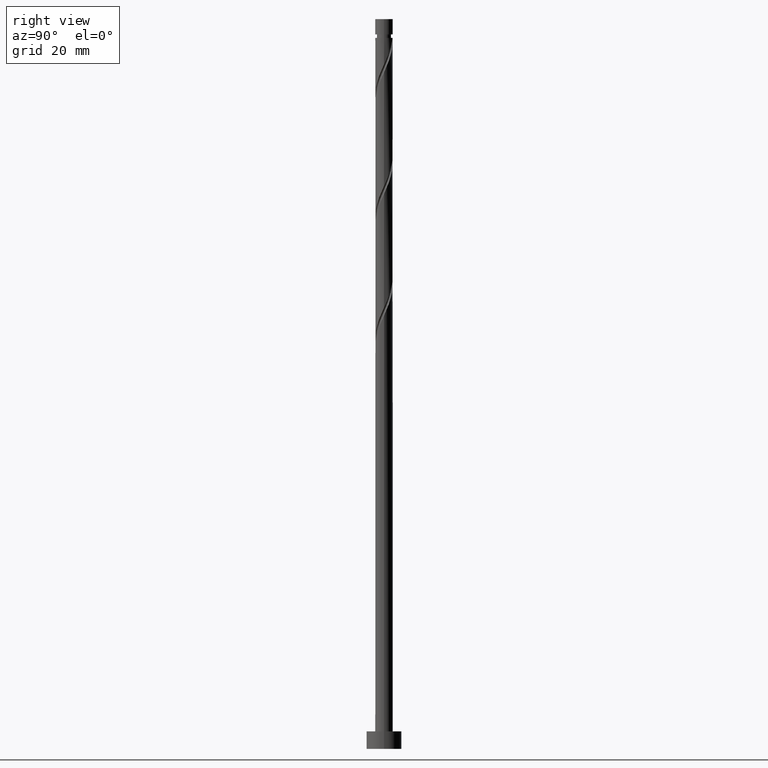
[diagram: clean part render]
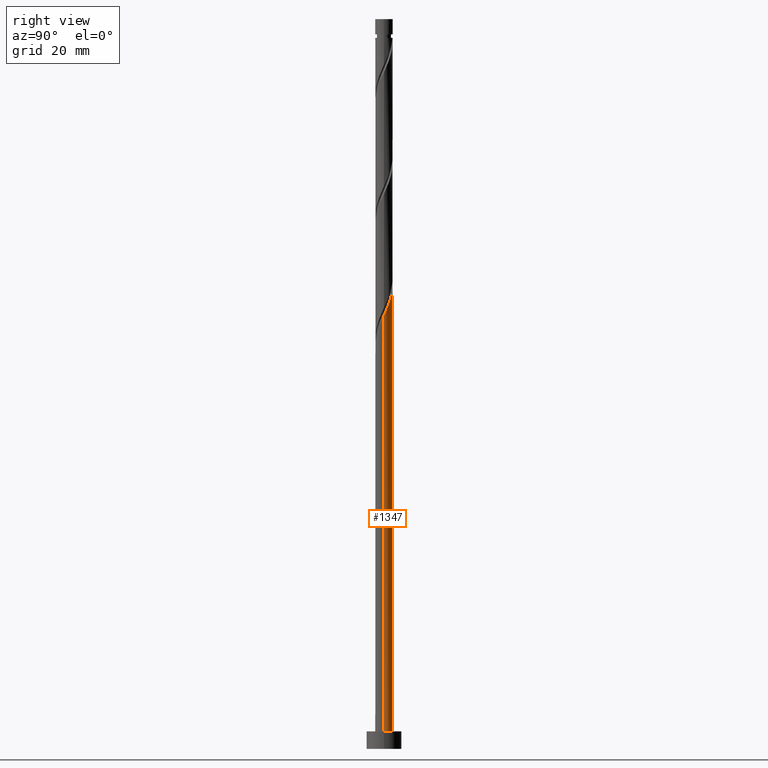
[diagram: same view with one face highlighted and labeled with its STEP entity id]
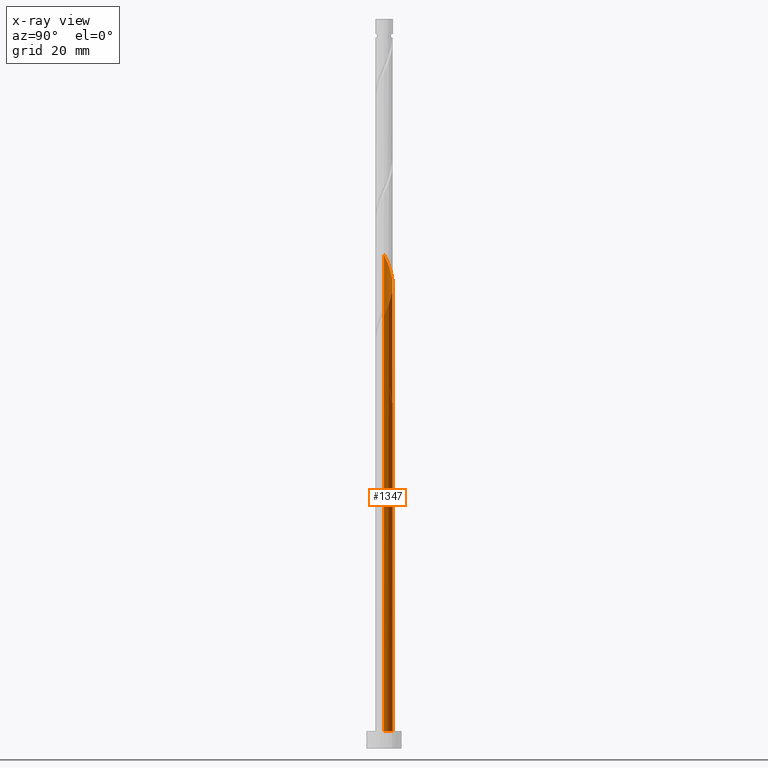
[diagram: x-ray of the same camera — body ghosted, the highlighted face saturated]
A machine part, right view. The second image highlights one B-rep face of the part: STEP entity #1347.
The next image is the same camera in x-ray: the body ghosted, the highlighted face saturated — about 0% of this face is hidden behind the body in this view.
In plain terms, the highlighted cylindrical surface (edge-blend (fillet) strip) has radius 1.5 mm, axis along (-0, -0, -1).
Its self-contained STEP definition (entity closure, byte-faithful):
#2 = CARTESIAN_POINT ( 'NONE',  ( -1.500000000000000666, 0.1507556722888808154, 64.82116267053270064 ) ) ;
#15 = VERTEX_POINT ( 'NONE', #197 ) ;
#65 = CARTESIAN_POINT ( 'NONE',  ( -1.266103512756640459, 0.8387040983525508864, 61.88649813780359921 ) ) ;
#69 = VECTOR ( 'NONE', #1432, 1000.000000000000000 ) ;
#71 = CARTESIAN_POINT ( 'NONE',  ( -1.490293487130534444, 0.1703681960235536030, 63.44899813780359210 ) ) ;
#99 = CARTESIAN_POINT ( 'NONE',  ( 0.000000000000000000, 0.000000000000000000, 3.000000000000000000 ) ) ;
#108 = CARTESIAN_POINT ( 'NONE',  ( 1.500000000000002442, 0.1507556722888809542, 74.57683360507451198 ) ) ;
#109 = EDGE_CURVE ( 'NONE', #855, #15, #1321, .T. ) ;
#119 = DIRECTION ( 'NONE',  ( 1.000000000000000000, 0.000000000000000000, 0.000000000000000000 ) ) ;
#122 = CARTESIAN_POINT ( 'NONE',  ( -0.9449621764685317560, 1.188902500061264966, 81.67816480447028482 ) ) ;
#129 = CARTESIAN_POINT ( 'NONE',  ( -1.305812670777219964, 0.7381417674387925620, 63.44899813780359210 ) ) ;
#143 = ORIENTED_EDGE ( 'NONE', *, *, #685, .F. ) ;
#145 = CARTESIAN_POINT ( 'NONE',  ( -1.470000000000000417, 0.2984962311319862560, 64.49066480447028482 ) ) ;
#162 = EDGE_CURVE ( 'NONE', #423, #15, #1092, .T. ) ;
#176 = VERTEX_POINT ( 'NONE', #1296 ) ;
#181 = CIRCLE ( 'NONE', #1075, 1.500000000000000222 ) ;
#197 = CARTESIAN_POINT ( 'NONE',  ( -1.500000000000000222, 0.000000000000000000, 3.000000000000000000 ) ) ;
#207 = LINE ( 'NONE', #487, #1478 ) ;
#216 = CARTESIAN_POINT ( 'NONE',  ( -1.364706664255442181, 0.6225557971272877023, 83.24066480447027061 ) ) ;
#223 = CARTESIAN_POINT ( 'NONE',  ( 1.500000000000002665, 1.266917185180876536E-15, 74.24252902966667023 ) ) ;
#227 = CARTESIAN_POINT ( 'NONE',  ( -0.06567110385491728430, 1.517277158506825430, 79.59483147113695622 ) ) ;
#243 = CARTESIAN_POINT ( 'NONE',  ( -1.105532844612586274, 1.013803299206907704, 82.19899813780358500 ) ) ;
#260 = ORIENTED_EDGE ( 'NONE', *, *, #1231, .T. ) ;
#267 = AXIS2_PLACEMENT_3D ( 'NONE', #99, #818, #119 ) ;
#279 = CARTESIAN_POINT ( 'NONE',  ( -1.364706664255442181, 0.6225557971272877023, 62.40733147113693491 ) ) ;
#281 = LINE ( 'NONE', #757, #327 ) ;
#298 = CARTESIAN_POINT ( 'NONE',  ( 0.4064074959020249622, 1.463309815754242571, 78.55316480447024219 ) ) ;
#314 = CARTESIAN_POINT ( 'NONE',  ( 1.188902500061265188, 0.9449621764685315339, 76.46983147113692780 ) ) ;
#327 = VECTOR ( 'NONE', #750, 1000.000000000000000 ) ;
#347 = CARTESIAN_POINT ( 'NONE',  ( -0.7381417674387935612, 1.305812670777222406, 81.15733147113694201 ) ) ;
#355 = AXIS2_PLACEMENT_3D ( 'NONE', #697, #397, #391 ) ;
#360 = CARTESIAN_POINT ( 'NONE',  ( -0.8387040983525493321, 1.266103512756638683, 61.88649813780360631 ) ) ;
#369 = CARTESIAN_POINT ( 'NONE',  ( -1.422722841493176960, 0.5313213584090547004, 63.96983147113694201 ) ) ;
#391 = DIRECTION ( 'NONE',  ( -1.000000000000000000, 0.000000000000000000, 0.000000000000000000 ) ) ;
#397 = DIRECTION ( 'NONE',  ( -0.000000000000000000, -0.000000000000000000, -1.000000000000000000 ) ) ;
#423 = VERTEX_POINT ( 'NONE', #896 ) ;
#468 = CARTESIAN_POINT ( 'NONE',  ( -1.266103512756640459, 0.8387040983525508864, 82.71983147113694201 ) ) ;
#487 = CARTESIAN_POINT ( 'NONE',  ( -1.500000000000000222, 0.000000000000000000, 125.0000000000000000 ) ) ;
#490 = FACE_OUTER_BOUND ( 'NONE', #631, .T. ) ;
#505 =( BOUNDED_CURVE ( )  B_SPLINE_CURVE ( 2, ( #223, #108, #1268, #671, #712, #314, #811, #1035, #1391, #298, #576, #227, #1306, #711, #347, #122, #243, #468, #216, #1199, #1214, #1546, #1100 ),
 .UNSPECIFIED., .F., .T. ) 
 B_SPLINE_CURVE_WITH_KNOTS ( ( 3, 2, 2, 2, 2, 2, 2, 2, 2, 2, 2, 3 ),
 ( 0.1795322023138551659, 0.1875000000000000000, 0.1999999999999999556, 0.2125000000000000222, 0.2249999999999999778, 0.2375000000000000444, 0.2500000000000000000, 0.2624999999999999556, 0.2750000000000000222, 0.2874999999999999778, 0.3000000000000000444, 0.3045322023138551382 ),
 .UNSPECIFIED. ) 
 CURVE ( )  GEOMETRIC_REPRESENTATION_ITEM ( )  RATIONAL_B_SPLINE_CURVE ( ( 0.9039174447099449505, 0.9019565955404742486, 0.9090909090909228274, 0.8978984914501387804, 0.9090909090909228274, 0.8978984914501387804, 0.9090909090909228274, 0.8978984914501387804, 0.9090909090909228274, 0.8978984914501387804, 0.9090909090909228274, 0.8978984914501387804, 0.9090909090909228274, 0.8978984914501387804, 0.9090909090909228274, 0.8978984914501387804, 0.9090909090909228274, 0.8978984914501387804, 0.9090909090909228274, 0.8978984914501387804, 0.9090909090909228274, 0.9050328050005871372, 0.9039174447099449505 ) ) 
 REPRESENTATION_ITEM ( '' )  );
#517 = CARTESIAN_POINT ( 'NONE',  ( -0.5313213584090551445, 1.422722841493179624, 59.80316480447027772 ) ) ;
#521 = CARTESIAN_POINT ( 'NONE',  ( -0.2984962311319860340, 1.470000000000002638, 59.28233147113692780 ) ) ;
#522 = EDGE_CURVE ( 'NONE', #889, #855, #606, .T. ) ;
#542 = ORIENTED_EDGE ( 'NONE', *, *, #1392, .F. ) ;
#573 = ORIENTED_EDGE ( 'NONE', *, *, #1030, .T. ) ;
#576 = CARTESIAN_POINT ( 'NONE',  ( 0.1703681960235538806, 1.490293487130534444, 79.07399813780362763 ) ) ;
#606 =( BOUNDED_CURVE ( )  B_SPLINE_CURVE ( 2, ( #1370, #517, #655, #790, #1157, #65, #279, #1037, #71, #1013, #1487 ),
 .UNSPECIFIED., .F., .T. ) 
 B_SPLINE_CURVE_WITH_KNOTS ( ( 3, 2, 2, 2, 2, 3 ),
 ( 0.000000000000000000, 0.01249999999999995559, 0.02500000000000002220, 0.03749999999999997780, 0.05000000000000004441, 0.05453220231385526307 ),
 .UNSPECIFIED. ) 
 CURVE ( )  GEOMETRIC_REPRESENTATION_ITEM ( )  RATIONAL_B_SPLINE_CURVE ( ( 0.9090909090909228274, 0.8978984914501387804, 0.9090909090909228274, 0.8978984914501387804, 0.9090909090909228274, 0.8978984914501387804, 0.9090909090909228274, 0.8978984914501387804, 0.9090909090909228274, 0.9050328050005872482, 0.9039174447099451726 ) ) 
 REPRESENTATION_ITEM ( '' )  );
#631 = EDGE_LOOP ( 'NONE', ( #542, #260, #870, #760, #1151, #573, #143, #931 ) ) ;
#634 = DIRECTION ( 'NONE',  ( 0.000000000000000000, 1.000000000000000000, -3.700743415417187627E-14 ) ) ;
#653 = DIRECTION ( 'NONE',  ( -2.054325274013052231E-29, -3.469446951953617344E-14, -1.000000000000000000 ) ) ;
#655 = CARTESIAN_POINT ( 'NONE',  ( -0.7381417674387935612, 1.305812670777222406, 60.32399813780361342 ) ) ;
#671 = CARTESIAN_POINT ( 'NONE',  ( 1.422722841493179624, 0.5313213584090549224, 75.42816480447027061 ) ) ;
#685 = EDGE_CURVE ( 'NONE', #913, #1050, #717, .T. ) ;
#690 = CARTESIAN_POINT ( 'NONE',  ( -1.500000000000000222, 0.000000000000000000, 125.0000000000000000 ) ) ;
#697 = CARTESIAN_POINT ( 'NONE',  ( 0.000000000000000000, 0.000000000000000000, 125.0000000000000000 ) ) ;
#711 = CARTESIAN_POINT ( 'NONE',  ( -0.5313213584090551445, 1.422722841493179624, 80.63649813780358500 ) ) ;
#712 = CARTESIAN_POINT ( 'NONE',  ( 1.305812670777222406, 0.7381417674387931172, 75.94899813780359921 ) ) ;
#714 = CARTESIAN_POINT ( 'NONE',  ( -0.6225557971272865920, 1.364706664255439961, 61.36566480447027772 ) ) ;
#717 =( BOUNDED_CURVE ( )  B_SPLINE_CURVE ( 2, ( #1060, #2, #145, #369, #129, #1328, #1207, #360, #714, #850, #1340, #1349, #966 ),
 .UNSPECIFIED., .F., .T. ) 
 B_SPLINE_CURVE_WITH_KNOTS ( ( 3, 2, 2, 2, 2, 2, 3 ),
 ( 0.9295322023138551382, 0.9375000000000000000, 0.9499999999999999556, 0.9625000000000000222, 0.9749999999999999778, 0.9875000000000000444, 1.000000000000000000 ),
 .UNSPECIFIED. ) 
 CURVE ( )  GEOMETRIC_REPRESENTATION_ITEM ( )  RATIONAL_B_SPLINE_CURVE ( ( 0.9039174447099389553, 0.9019565955404681423, 0.9090909090909166101, 0.8978984914501326742, 0.9090909090909166101, 0.8978984914501326742, 0.9090909090909166101, 0.8978984914501326742, 0.9090909090909166101, 0.8978984914501326742, 0.9090909090909166101, 0.8978984914501326742, 0.9090909090909166101 ) ) 
 REPRESENTATION_ITEM ( '' )  );
#750 = DIRECTION ( 'NONE',  ( -0.000000000000000000, -0.000000000000000000, -1.000000000000000000 ) ) ;
#757 = CARTESIAN_POINT ( 'NONE',  ( 1.500000000000000222, 1.836970198721029934E-16, 125.0000000000000000 ) ) ;
#760 = ORIENTED_EDGE ( 'NONE', *, *, #109, .F. ) ;
#790 = CARTESIAN_POINT ( 'NONE',  ( -0.9449621764685317560, 1.188902500061264966, 60.84483147113692780 ) ) ;
#811 = CARTESIAN_POINT ( 'NONE',  ( 1.013803299206908148, 1.105532844612585830, 76.99066480447025640 ) ) ;
#818 = DIRECTION ( 'NONE',  ( 0.000000000000000000, 0.000000000000000000, 1.000000000000000000 ) ) ;
#850 = CARTESIAN_POINT ( 'NONE',  ( -0.4064074959020237410, 1.463309815754240795, 60.84483147113693491 ) ) ;
#855 = VERTEX_POINT ( 'NONE', #1104 ) ;
#870 = ORIENTED_EDGE ( 'NONE', *, *, #162, .T. ) ;
#874 = CARTESIAN_POINT ( 'NONE',  ( -1.500000000000000222, 1.889130950683923294E-15, 65.15546724594054240 ) ) ;
#889 = VERTEX_POINT ( 'NONE', #521 ) ;
#896 = CARTESIAN_POINT ( 'NONE',  ( 1.500000000000000222, 1.836970198721029934E-16, 3.000000000000000000 ) ) ;
#913 = VERTEX_POINT ( 'NONE', #874 ) ;
#931 = ORIENTED_EDGE ( 'NONE', *, *, #1446, .F. ) ;
#966 = CARTESIAN_POINT ( 'NONE',  ( 0.2984962311319865891, 1.470000000000000417, 59.28233147113692070 ) ) ;
#984 = CYLINDRICAL_SURFACE ( 'NONE', #355, 1.500000000000000222 ) ;
#1013 = CARTESIAN_POINT ( 'NONE',  ( -1.500000000000002665, 0.08546060616964842871, 63.63635127379273371 ) ) ;
#1030 = EDGE_CURVE ( 'NONE', #889, #1050, #181, .T. ) ;
#1035 = CARTESIAN_POINT ( 'NONE',  ( 0.8387040983525511084, 1.266103512756640237, 77.51149813780361342 ) ) ;
#1037 = CARTESIAN_POINT ( 'NONE',  ( -1.463309815754242571, 0.4064074959020247402, 62.92816480447027772 ) ) ;
#1050 = VERTEX_POINT ( 'NONE', #1512 ) ;
#1060 = CARTESIAN_POINT ( 'NONE',  ( -1.500000000000000222, 1.889130950683923294E-15, 65.15546724594054240 ) ) ;
#1075 = AXIS2_PLACEMENT_3D ( 'NONE', #1261, #653, #634 ) ;
#1092 = CIRCLE ( 'NONE', #267, 1.500000000000000222 ) ;
#1100 = CARTESIAN_POINT ( 'NONE',  ( -1.500000000000002665, -1.476820624145755631E-15, 84.65919569633332742 ) ) ;
#1104 = CARTESIAN_POINT ( 'NONE',  ( -1.500000000000002665, -1.476820624145755631E-15, 63.82586236300001303 ) ) ;
#1151 = ORIENTED_EDGE ( 'NONE', *, *, #522, .F. ) ;
#1157 = CARTESIAN_POINT ( 'NONE',  ( -1.105532844612586274, 1.013803299206907704, 61.36566480447026350 ) ) ;
#1199 = CARTESIAN_POINT ( 'NONE',  ( -1.463309815754242571, 0.4064074959020247402, 83.76149813780359921 ) ) ;
#1207 = CARTESIAN_POINT ( 'NONE',  ( -1.013803299206905928, 1.105532844612584498, 62.40733147113693491 ) ) ;
#1214 = CARTESIAN_POINT ( 'NONE',  ( -1.490293487130534444, 0.1703681960235536030, 84.28233147113694201 ) ) ;
#1228 = VERTEX_POINT ( 'NONE', #1364 ) ;
#1231 = EDGE_CURVE ( 'NONE', #1228, #423, #281, .T. ) ;
#1261 = CARTESIAN_POINT ( 'NONE',  ( 0.000000000000000000, 0.000000000000000000, 59.28233147113698465 ) ) ;
#1268 = CARTESIAN_POINT ( 'NONE',  ( 1.470000000000002860, 0.2984962311319862005, 74.90733147113695622 ) ) ;
#1296 = CARTESIAN_POINT ( 'NONE',  ( -1.500000000000002665, -1.476820624145755631E-15, 84.65919569633332742 ) ) ;
#1306 = CARTESIAN_POINT ( 'NONE',  ( -0.2984962311319860340, 1.470000000000002860, 80.11566480447028482 ) ) ;
#1321 = LINE ( 'NONE', #690, #69 ) ;
#1328 = CARTESIAN_POINT ( 'NONE',  ( -1.188902500061263190, 0.9449621764685305347, 62.92816480447027772 ) ) ;
#1340 = CARTESIAN_POINT ( 'NONE',  ( -0.1703681960235529924, 1.490293487130532002, 60.32399813780361342 ) ) ;
#1347 = ADVANCED_FACE ( 'NONE', ( #490 ), #984, .T. ) ;
#1349 = CARTESIAN_POINT ( 'NONE',  ( 0.06567110385491782554, 1.517277158506823431, 59.80316480447025640 ) ) ;
#1364 = CARTESIAN_POINT ( 'NONE',  ( 1.500000000000002665, 1.266917185180876536E-15, 74.24252902966667023 ) ) ;
#1370 = CARTESIAN_POINT ( 'NONE',  ( -0.2984962311319860340, 1.470000000000002416, 59.28233147113692780 ) ) ;
#1391 = CARTESIAN_POINT ( 'NONE',  ( 0.6225557971272880353, 1.364706664255441737, 78.03233147113697044 ) ) ;
#1392 = EDGE_CURVE ( 'NONE', #1228, #176, #505, .T. ) ;
#1432 = DIRECTION ( 'NONE',  ( -0.000000000000000000, -0.000000000000000000, -1.000000000000000000 ) ) ;
#1444 = DIRECTION ( 'NONE',  ( -0.000000000000000000, -0.000000000000000000, -1.000000000000000000 ) ) ;
#1446 = EDGE_CURVE ( 'NONE', #176, #913, #207, .T. ) ;
#1478 = VECTOR ( 'NONE', #1444, 1000.000000000000000 ) ;
#1487 = CARTESIAN_POINT ( 'NONE',  ( -1.500000000000002665, -1.476820624145755631E-15, 63.82586236300001303 ) ) ;
#1512 = CARTESIAN_POINT ( 'NONE',  ( 0.2984962311319865891, 1.470000000000000417, 59.28233147113692780 ) ) ;
#1546 = CARTESIAN_POINT ( 'NONE',  ( -1.500000000000002665, 0.08546060616965089896, 84.46968460712604099 ) ) ;